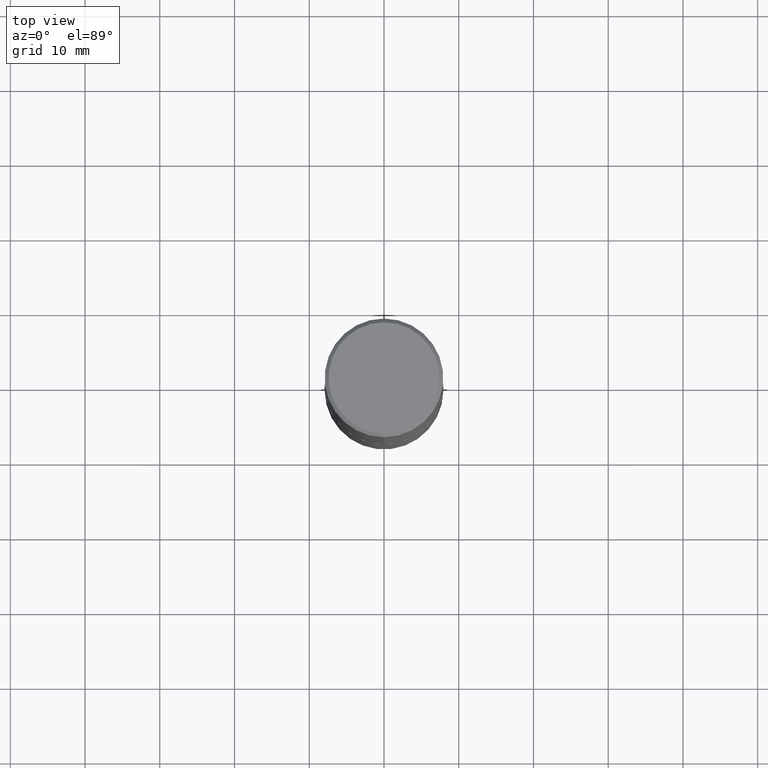
[diagram: clean part render]
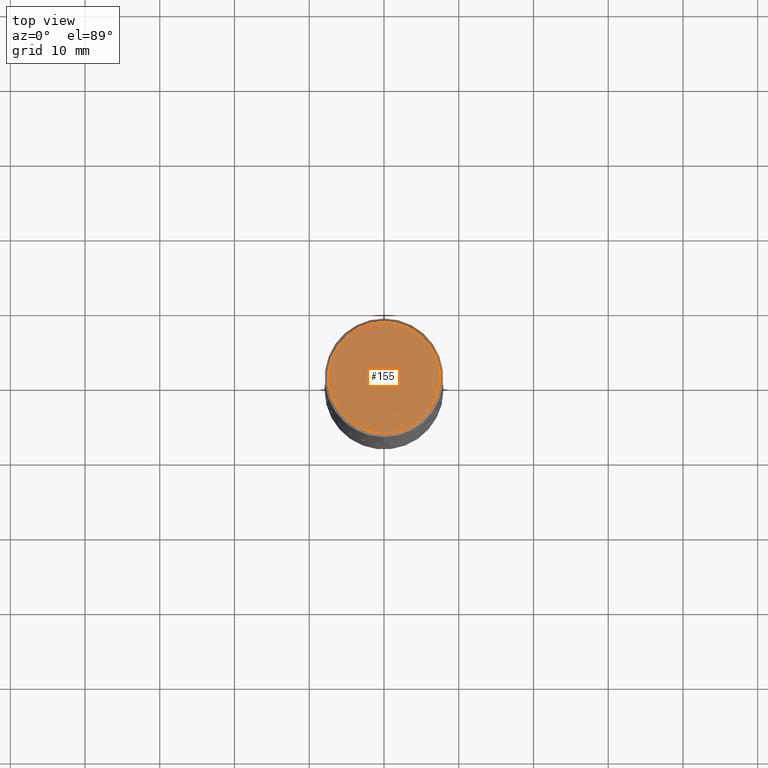
[diagram: same view with one face highlighted and labeled with its STEP entity id]
A machine part, top view. The second image highlights one B-rep face of the part: STEP entity #155.
In plain terms, the highlighted planar face has unit normal (0, -0, -1).
Its self-contained STEP definition (entity closure, byte-faithful):
#15 = CARTESIAN_POINT ( 'NONE',  ( -6.347385878346910481E-46, 9.068652819265783359E-32, 2.596466426377198562E-17 ) ) ;
#50 = AXIS2_PLACEMENT_3D ( 'NONE', #177, #301, #281 ) ;
#94 = EDGE_LOOP ( 'NONE', ( #253, #246 ) ) ;
#104 = CARTESIAN_POINT ( 'NONE',  ( -6.347385878346910481E-46, 9.068652819265783359E-32, 2.596466426377198562E-17 ) ) ;
#133 = DIRECTION ( 'NONE',  ( -2.444624669075078147E-29, 3.492690191230049832E-15, 1.000000000000000000 ) ) ;
#140 = CARTESIAN_POINT ( 'NONE',  ( 2.112346210000095049E-15, 0.2924999999999998712, -9.956472166710172595E-16 ) ) ;
#155 = ADVANCED_FACE ( 'NONE', ( #291 ), #392, .F. ) ;
#161 = VERTEX_POINT ( 'NONE', #140 ) ;
#166 = EDGE_CURVE ( 'NONE', #161, #275, #174, .T. ) ;
#174 = CIRCLE ( 'NONE', #379, 0.2924999999999998712 ) ;
#177 = CARTESIAN_POINT ( 'NONE',  ( 2.042516583223232145E-15, 0.2924999999999998712, -1.008629548802903049E-15 ) ) ;
#188 = CARTESIAN_POINT ( 'NONE',  ( -2.075300644325887099E-15, -0.2924999999999998712, 1.047576545198561206E-15 ) ) ;
#231 = CIRCLE ( 'NONE', #280, 0.2924999999999998712 ) ;
#246 = ORIENTED_EDGE ( 'NONE', *, *, #344, .T. ) ;
#253 = ORIENTED_EDGE ( 'NONE', *, *, #166, .T. ) ;
#264 = DIRECTION ( 'NONE',  ( -2.444624669075078147E-29, 3.492690191230049832E-15, 1.000000000000000000 ) ) ;
#265 = DIRECTION ( 'NONE',  ( -6.982962677686266711E-15, -1.000000000000000000, 3.492690191230050227E-15 ) ) ;
#275 = VERTEX_POINT ( 'NONE', #188 ) ;
#280 = AXIS2_PLACEMENT_3D ( 'NONE', #15, #133, #265 ) ;
#281 = DIRECTION ( 'NONE',  ( 6.982962677686265922E-15, 1.000000000000000000, -3.492690191230049832E-15 ) ) ;
#291 = FACE_OUTER_BOUND ( 'NONE', #94, .T. ) ;
#301 = DIRECTION ( 'NONE',  ( 2.444624669075077866E-29, -3.492690191230049832E-15, -1.000000000000000000 ) ) ;
#344 = EDGE_CURVE ( 'NONE', #275, #161, #231, .T. ) ;
#379 = AXIS2_PLACEMENT_3D ( 'NONE', #104, #264, #399 ) ;
#392 = PLANE ( 'NONE',  #50 ) ;
#399 = DIRECTION ( 'NONE',  ( -6.982962677686266711E-15, -1.000000000000000000, 3.492690191230050227E-15 ) ) ;